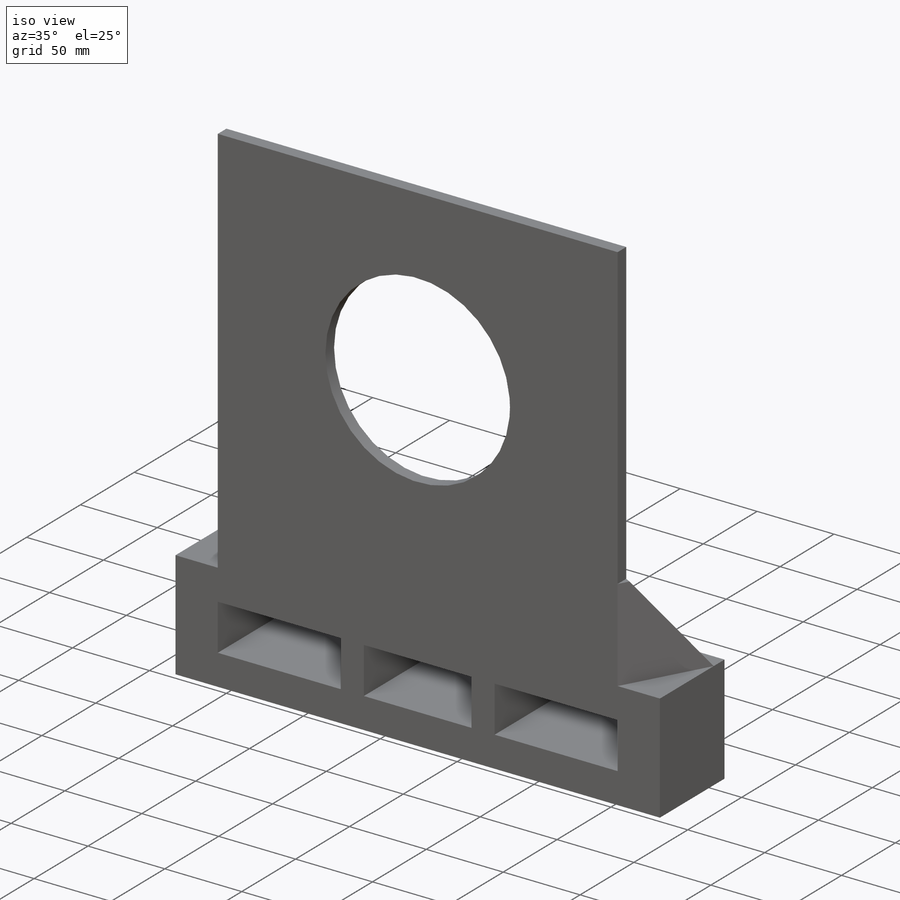
[diagram: iso view]
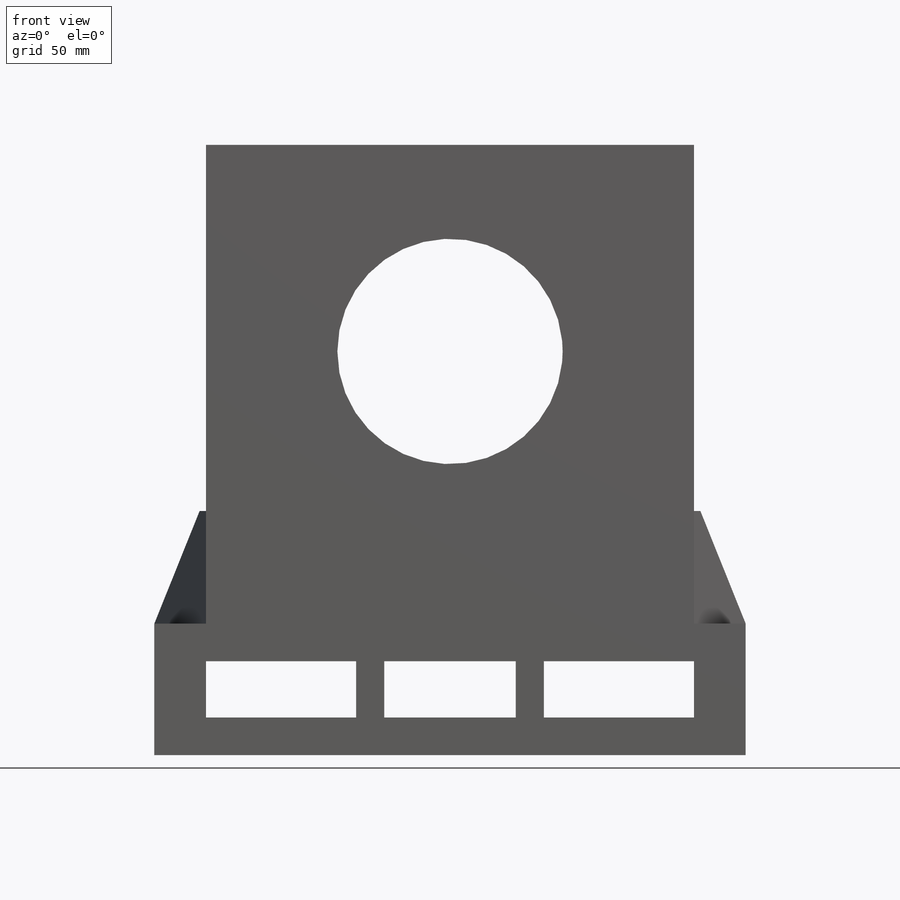
[diagram: front view]
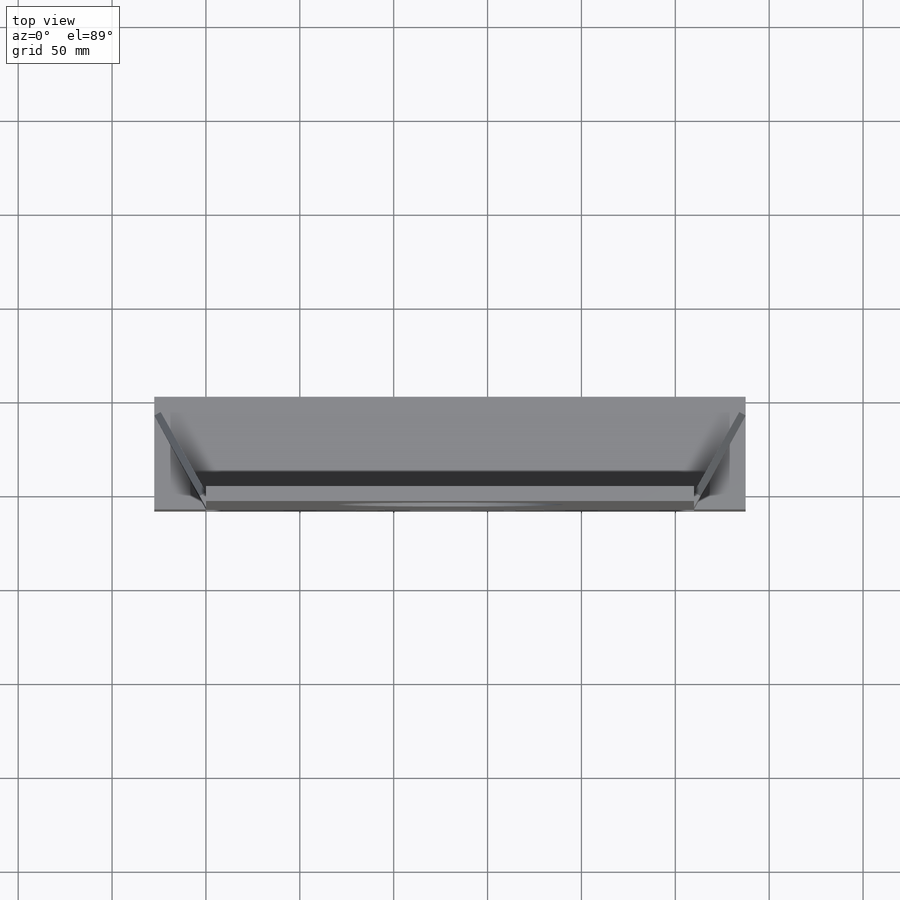
[diagram: top view]
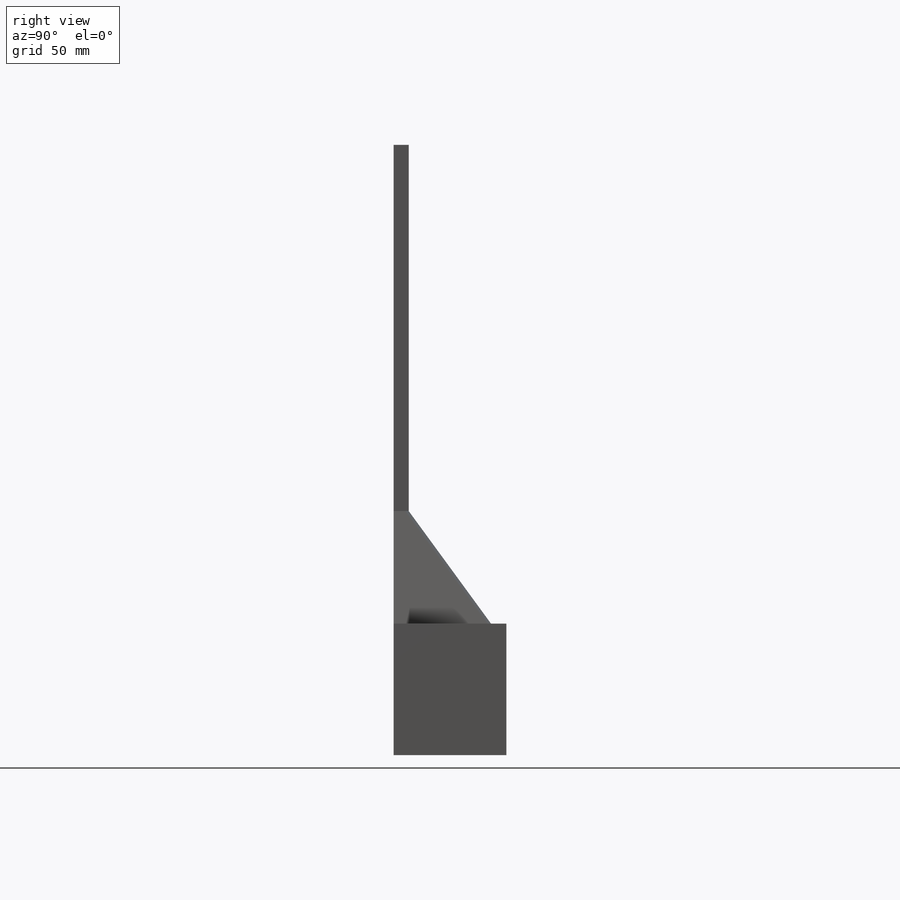
[diagram: right view]
SOLIDWORKS PART (.sldprt)
format: sldprt  version: not decoded by parser v0  size: 199,168 bytes
history: native  units: mm
features: sketch x5, extrude x3, cut_extrude x2, material x1 (+13 scaffold rows collapsed)
feature tree (24):
  scaffold x13  (default folders/planes/origin — collapsed)
  material  "Material <not specified>"
  sketch  "Sketch1"  dims[c1.D3=120.0mm c1.D4=120.0mm c1.D5=120.0mm c1.D1=260.0mm c1.D2=255.0mm c2.D3=130.0mm c2.D4=110.0mm c2.D1=0.0mm]
  extrude  "Boss-Extrude1"  Depth=8mm
  sketch  "Sketch2"  dims[c1.D1=27.5mm c1.D2=315.0mm c1.D3=70.0mm c2.D3=90.0deg c3.D3=325.0mm c3.D4=70.0mm c3.D5=30.0mm c3.D6=80.0mm c3.D7=15.0mm c3.D8=70.0mm c3.D9=15.0mm c3.D10=80.0mm c3.D11=70.0mm c3.D1=0.0mm]
  extrude  "Boss-Extrude2"  Depth=60mm
  sketch  "Sketch3"  dims[D1=50.0mm D2=50.0mm]
  extrude  "Boss-Extrude3"  Depth=60mm
  sketch  "Sketch4"
  cut_extrude  "Cut-Extrude1"  [1 undecoded]
  sketch  "Sketch5"
  cut_extrude  "Cut-Extrude2"  [1 undecoded]
decode coverage: 6 of 10 modeling features carry decoded parameters
note: 2 parameter values undecoded
note: suppression state not decoded; provenance and decode notes live in map.json
